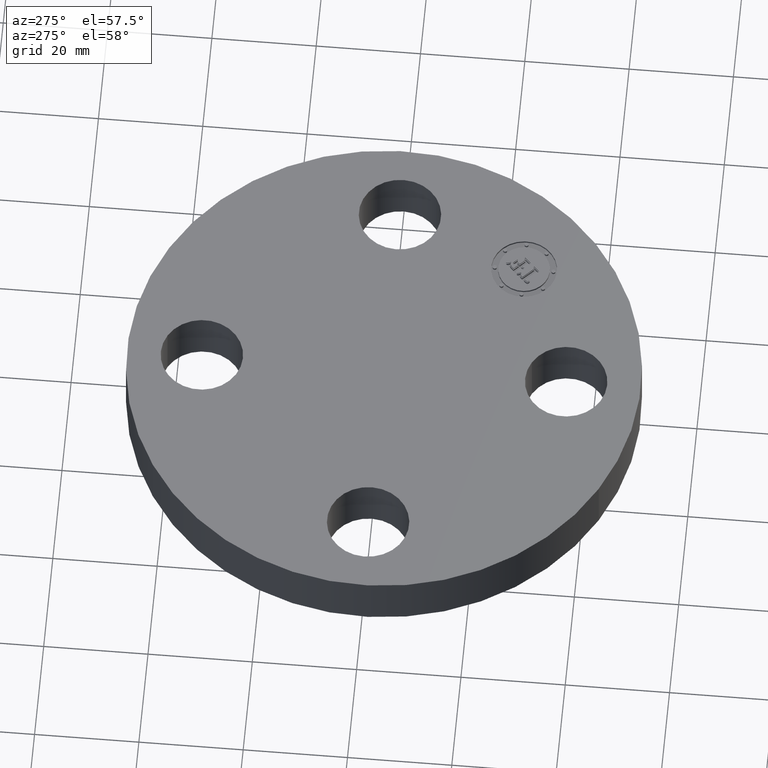
[diagram: clean part render]
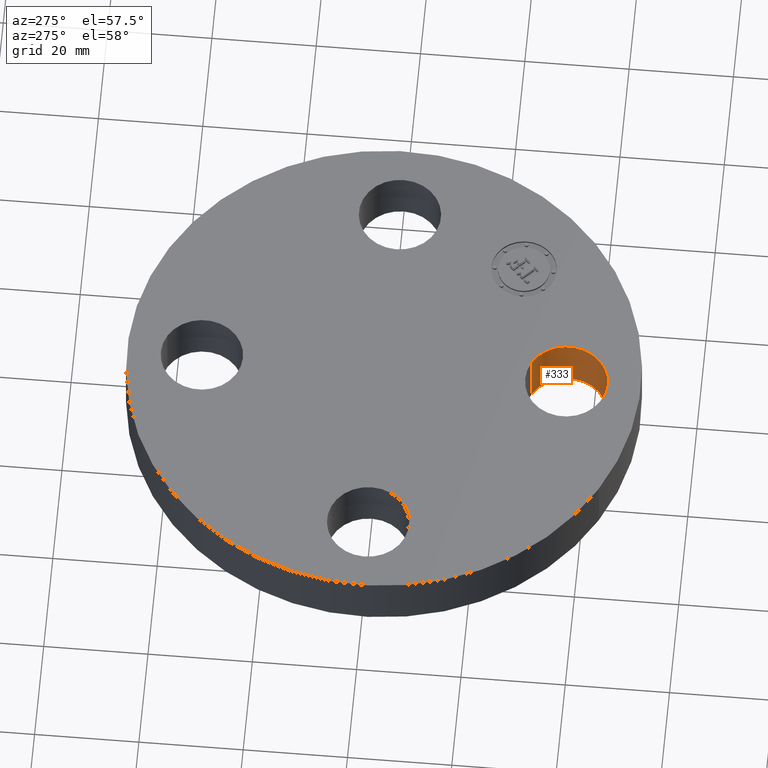
[diagram: same view with one face highlighted and labeled with its STEP entity id]
A machine part, auxiliary view. The second image highlights one B-rep face of the part: STEP entity #333.
In plain terms, the highlighted cylindrical surface (partial cylindrical patch) has radius 7.874 mm, axis along (0, -0, -1).
Its self-contained STEP definition (entity closure, byte-faithful):
#164=AXIS2_PLACEMENT_3D('Circle Axis2P3D',#162,#163,$) ;
#306=AXIS2_PLACEMENT_3D('Cylinder Axis2P3D',#303,#304,#305) ;
#324=AXIS2_PLACEMENT_3D('Circle Axis2P3D',#322,#323,$) ;
#162=CARTESIAN_POINT('Axis2P3D Location',(-6.99353086378E-017,-1.37500000001,0.)) ;
#166=CARTESIAN_POINT('Vertex',(0.148621916968,-1.10294940582,0.)) ;
#168=CARTESIAN_POINT('Vertex',(-0.148621916968,-1.64705059419,0.)) ;
#303=CARTESIAN_POINT('Axis2P3D Location',(-1.9554676711E-016,-1.37500000001,0.436062992128)) ;
#308=CARTESIAN_POINT('Line Origine',(0.148621916968,-1.10294940582,0.220000000001)) ;
#312=CARTESIAN_POINT('Vertex',(0.148621916968,-1.10294940582,0.440000000002)) ;
#315=CARTESIAN_POINT('Line Origine',(-0.148621916968,-1.64705059419,0.220000000001)) ;
#319=CARTESIAN_POINT('Vertex',(-0.148621916968,-1.64705059419,0.440000000002)) ;
#322=CARTESIAN_POINT('Axis2P3D Location',(-1.9554676711E-016,-1.37500000001,0.440000000002)) ;
#163=DIRECTION('Axis2P3D Direction',(0.,0.,-0.0393700787402)) ;
#304=DIRECTION('Axis2P3D Direction',(0.,-0.,-0.0393700787402)) ;
#305=DIRECTION('Axis2P3D XDirection',(-0.0188750212049,-0.0345504945626,0.)) ;
#309=DIRECTION('Vector Direction',(0.,0.,-0.0393700787402)) ;
#316=DIRECTION('Vector Direction',(0.,0.,-0.0393700787402)) ;
#323=DIRECTION('Axis2P3D Direction',(0.,-0.,-0.0393700787402)) ;
#310=VECTOR('Line Direction',#309,0.0393700787402) ;
#317=VECTOR('Line Direction',#316,0.0393700787402) ;
#328=ORIENTED_EDGE('',*,*,#314,.F.) ;
#329=ORIENTED_EDGE('',*,*,#170,.T.) ;
#330=ORIENTED_EDGE('',*,*,#321,.T.) ;
#331=ORIENTED_EDGE('',*,*,#326,.F.) ;
#333=ADVANCED_FACE('PartBody',(#332),#307,.F.) ;
#165=CIRCLE('generated circle',#164,0.310000000001) ;
#325=CIRCLE('generated circle',#324,0.310000000001) ;
#307=CYLINDRICAL_SURFACE('generated cylinder',#306,0.310000000001) ;
#170=EDGE_CURVE('',#167,#169,#165,.T.) ;
#314=EDGE_CURVE('',#167,#313,#311,.F.) ;
#321=EDGE_CURVE('',#169,#320,#318,.F.) ;
#326=EDGE_CURVE('',#313,#320,#325,.T.) ;
#327=EDGE_LOOP('',(#328,#329,#330,#331)) ;
#332=FACE_OUTER_BOUND('',#327,.T.) ;
#311=LINE('Line',#308,#310) ;
#318=LINE('Line',#315,#317) ;
#167=VERTEX_POINT('',#166) ;
#169=VERTEX_POINT('',#168) ;
#313=VERTEX_POINT('',#312) ;
#320=VERTEX_POINT('',#319) ;